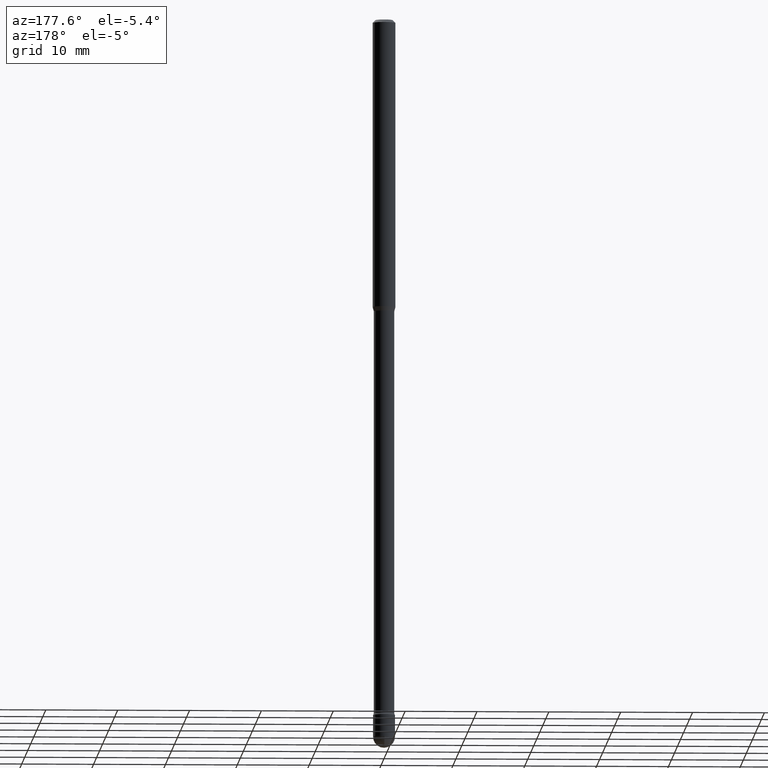
[diagram: clean part render]
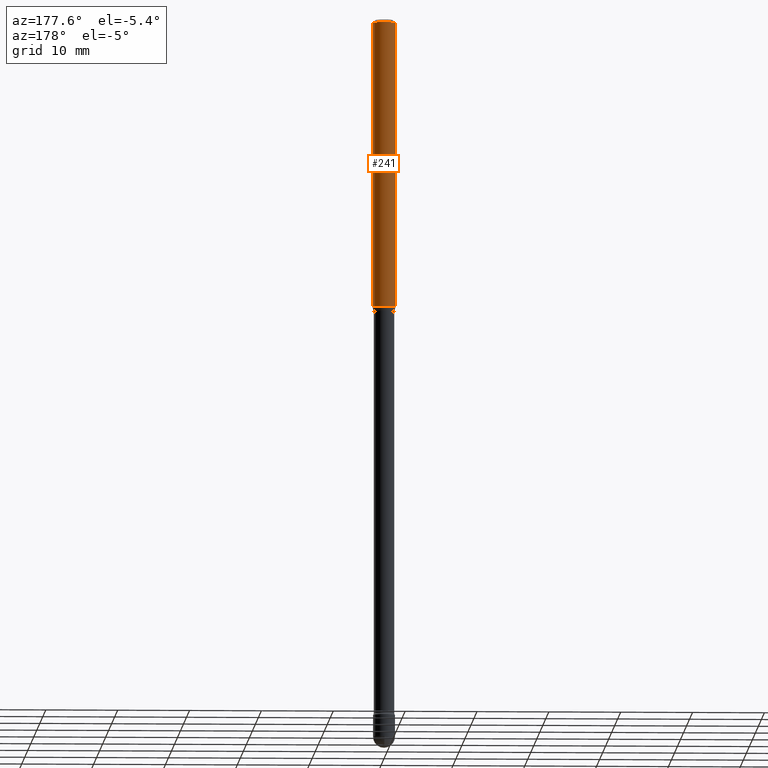
[diagram: same view with one face highlighted and labeled with its STEP entity id]
A machine part, auxiliary view. The second image highlights one B-rep face of the part: STEP entity #241.
In plain terms, the highlighted cylindrical surface (edge-blend (fillet) strip) has radius 1.5875 mm, axis along (-0, 0, 1).
Its self-contained STEP definition (entity closure, byte-faithful):
#3 = CARTESIAN_POINT ( 'NONE',  ( 0.06250000000000000000, -4.888073874380391431E-16, -0.01500000000000008271 ) ) ;
#12 = DIRECTION ( 'NONE',  ( -2.445468806185136597E-29, 3.491481338843145583E-15, 1.000000000000000000 ) ) ;
#22 = EDGE_CURVE ( 'NONE', #423, #34, #346, .T. ) ;
#34 = VERTEX_POINT ( 'NONE', #179 ) ;
#47 = CARTESIAN_POINT ( 'NONE',  ( 3.668203209277725232E-31, -5.237222008264747365E-17, -0.01500000000000008271 ) ) ;
#48 = EDGE_CURVE ( 'NONE', #527, #401, #186, .T. ) ;
#52 = DIRECTION ( 'NONE',  ( 1.000000000000000000, -6.982962677686262766E-15, 0.000000000000000000 ) ) ;
#56 = CARTESIAN_POINT ( 'NONE',  ( 3.857077745514871327E-29, -5.506884789072561462E-15, -1.577234490073829765 ) ) ;
#83 = EDGE_LOOP ( 'NONE', ( #171, #170, #293, #425 ) ) ;
#87 = AXIS2_PLACEMENT_3D ( 'NONE', #47, #429, #221 ) ;
#100 = EDGE_CURVE ( 'NONE', #401, #34, #325, .T. ) ;
#147 = CARTESIAN_POINT ( 'NONE',  ( -0.06250000000000000000, 4.440892098500642925E-16, 4.780733988912429571E-16 ) ) ;
#170 = ORIENTED_EDGE ( 'NONE', *, *, #22, .T. ) ;
#171 = ORIENTED_EDGE ( 'NONE', *, *, #229, .T. ) ;
#179 = CARTESIAN_POINT ( 'NONE',  ( -0.06250000000000000000, -2.335539294727541852E-15, -0.01500000000000008271 ) ) ;
#182 = AXIS2_PLACEMENT_3D ( 'NONE', #365, #539, #236 ) ;
#186 = LINE ( 'NONE', #304, #317 ) ;
#189 = FACE_OUTER_BOUND ( 'NONE', #83, .T. ) ;
#221 = DIRECTION ( 'NONE',  ( 1.000000000000000000, -6.982962677686266711E-15, 0.000000000000000000 ) ) ;
#229 = EDGE_CURVE ( 'NONE', #527, #423, #289, .T. ) ;
#235 = CARTESIAN_POINT ( 'NONE',  ( -0.06250000000000000000, -5.062795579222499634E-15, -1.577234490073829765 ) ) ;
#236 = DIRECTION ( 'NONE',  ( 1.000000000000000000, -6.982962677686266711E-15, 4.852736867747366207E-29 ) ) ;
#241 = ADVANCED_FACE ( 'NONE', ( #189 ), #358, .T. ) ;
#288 = CARTESIAN_POINT ( 'NONE',  ( 0.06250000000000000000, -5.943319956427953131E-15, -1.577234490073829765 ) ) ;
#289 = CIRCLE ( 'NONE', #562, 0.06250000000000000000 ) ;
#293 = ORIENTED_EDGE ( 'NONE', *, *, #100, .F. ) ;
#304 = CARTESIAN_POINT ( 'NONE',  ( 0.06250000000000000000, -4.364351673553899931E-16, 4.780733988912490708E-16 ) ) ;
#317 = VECTOR ( 'NONE', #472, 39.37007874015748143 ) ;
#325 = CIRCLE ( 'NONE', #87, 0.06250000000000000000 ) ;
#346 = LINE ( 'NONE', #147, #418 ) ;
#357 = DIRECTION ( 'NONE',  ( -2.445468806185136877E-29, 3.491481338843145188E-15, 1.000000000000000000 ) ) ;
#358 = CYLINDRICAL_SURFACE ( 'NONE', #182, 0.06250000000000000000 ) ;
#365 = CARTESIAN_POINT ( 'NONE',  ( -1.169113584055446105E-44, 1.669184350826100908E-30, 4.780733988912460139E-16 ) ) ;
#401 = VERTEX_POINT ( 'NONE', #3 ) ;
#418 = VECTOR ( 'NONE', #357, 39.37007874015748143 ) ;
#423 = VERTEX_POINT ( 'NONE', #235 ) ;
#425 = ORIENTED_EDGE ( 'NONE', *, *, #48, .F. ) ;
#429 = DIRECTION ( 'NONE',  ( -2.445468806185136597E-29, 3.491481338843145583E-15, 1.000000000000000000 ) ) ;
#472 = DIRECTION ( 'NONE',  ( -2.445468806185136877E-29, 3.491481338843145188E-15, 1.000000000000000000 ) ) ;
#527 = VERTEX_POINT ( 'NONE', #288 ) ;
#539 = DIRECTION ( 'NONE',  ( -2.445468806185136597E-29, 3.491481338843145583E-15, 1.000000000000000000 ) ) ;
#562 = AXIS2_PLACEMENT_3D ( 'NONE', #56, #12, #52 ) ;